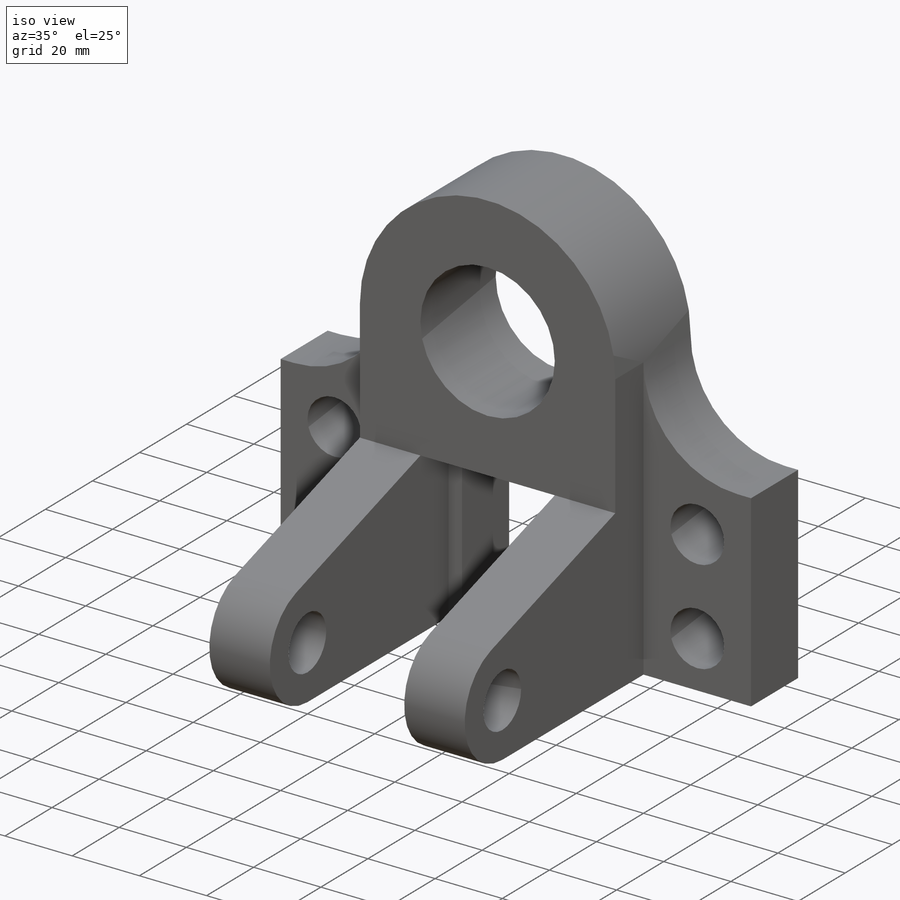
[diagram: iso view]
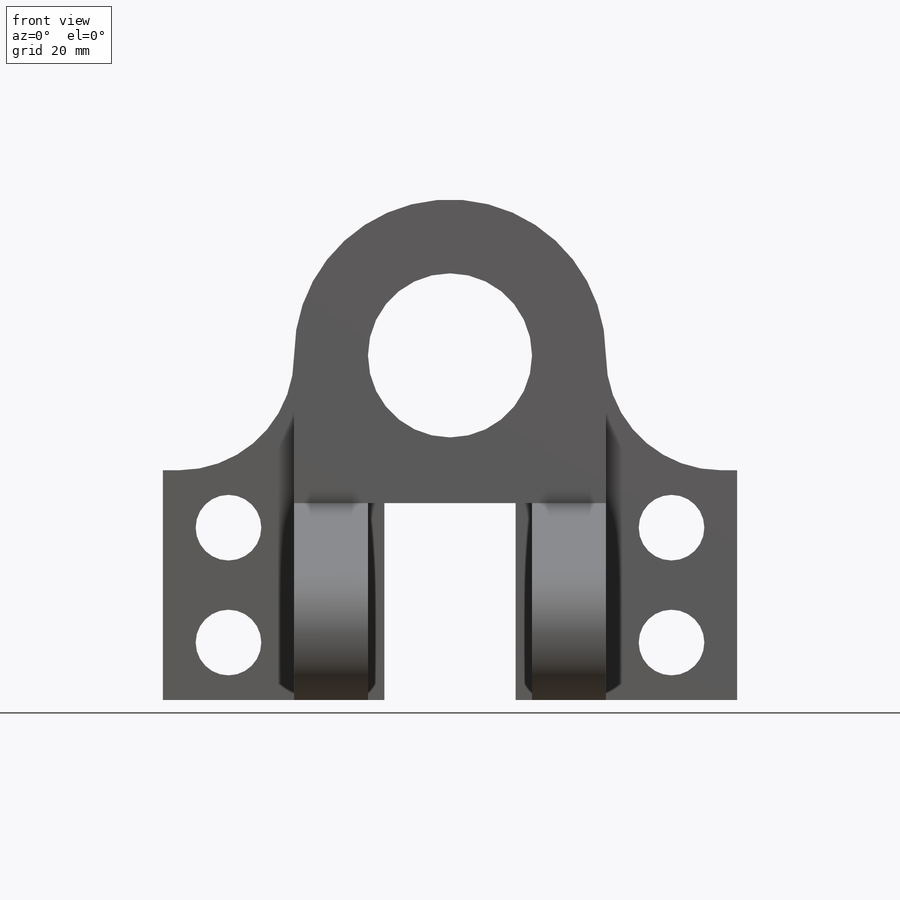
[diagram: front view]
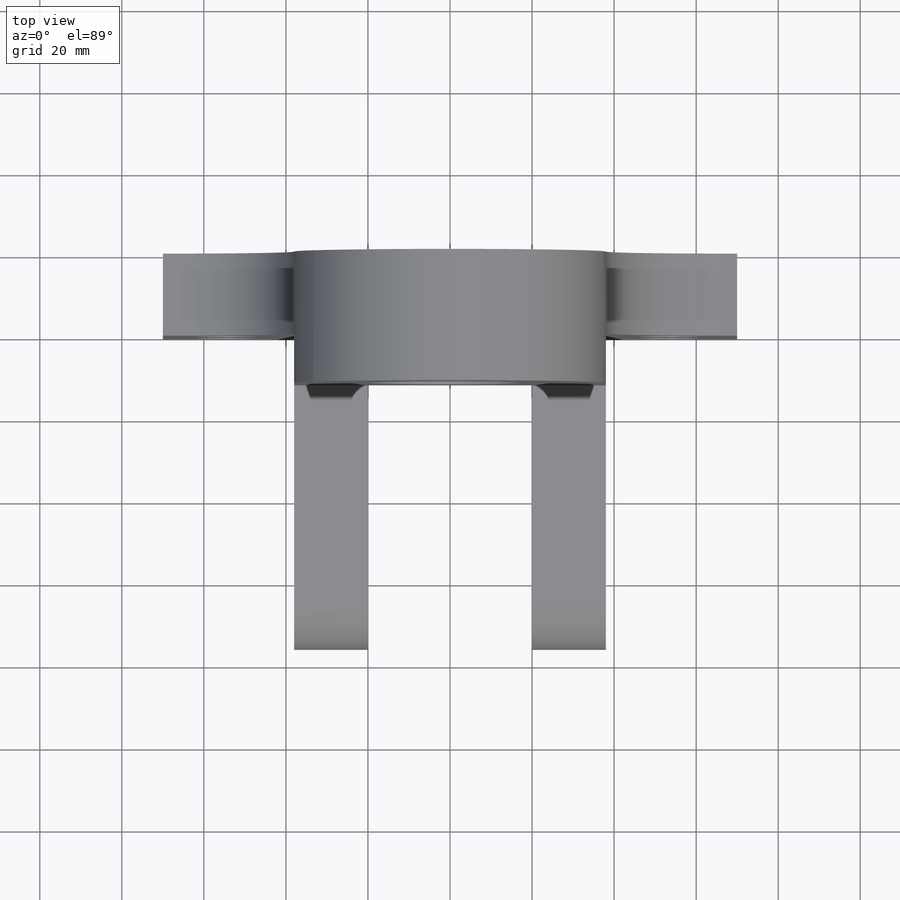
[diagram: top view]
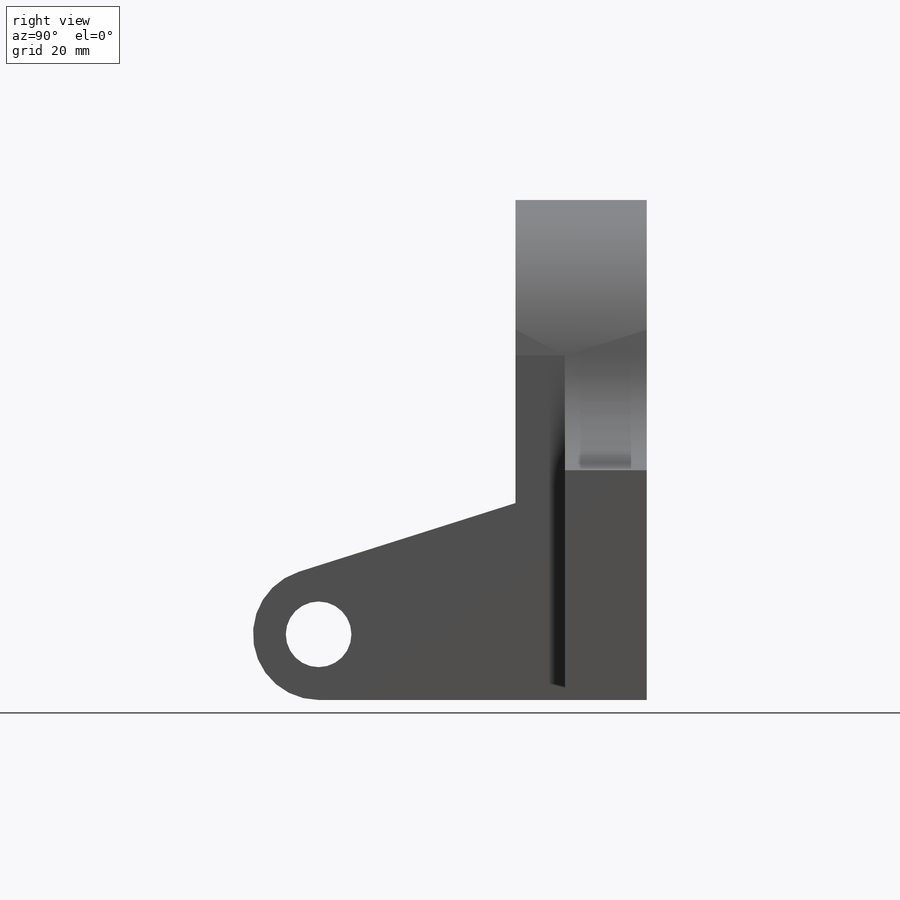
[diagram: right view]
SOLIDWORKS PART (.sldprt)
format: sldprt  version: not decoded by parser v0  size: 247,296 bytes
history: native  units: mm
features: sketch x4, extrude x4, mirror x3, fillet x2, material x1 (+12 scaffold rows collapsed)
feature tree (26):
  scaffold x12  (default folders/planes/origin — collapsed)
  material  "Material <not specified>"
  sketch  "Sketch1"  dims[c1.D1=40.0mm c1.D2=76.0mm c2.D1=~20.739461mm c2.D2=~74.621665mm c2.D3=76.0mm c2.D4=36.0mm]
  extrude  "Boss-Extrude1"  Depth=32mm
  sketch  "Sketch2"  dims[c1.D1=~24.992733mm c1.D3=~17.996083mm c1.D5=~19.226567mm c1.D6=~19.226567mm c2.D5=16.0mm c2.D1=48.0mm c2.D2=32.0mm c2.D3=28.0mm c2.D4=14.0mm c2.D6=16.0mm c2.D7=84.0mm c2.D8=84.0mm c3.D2=56.0mm c3.D7=50.0mm c3.D8=32.0mm c3.D9=~90.866244mm c3.D1=84.0mm]
  extrude  "Boss-Extrude3"  Depth=20mm
  mirror  "Mirror9"
  fillet  "Fillet15"  Radius=28mm
  fillet  "Fillet16"  Radius=28mm
  sketch  "Sketch3"  dims[c1.D1=16.0mm c1.D2=16.0mm c2.D1=~133.520196mm c2.D3=60.0mm c2.D4=~54.553559mm]
  extrude  "Boss-Extrude4"  Depth=18mm
  mirror  "Mirror11"
  sketch  "Sketch4"  dims[c1.D1=48.0mm c1.D2=~22.593358mm c2.D1=20.0mm c2.D2=48.0mm]
  extrude  "Boss-Extrude5"  Depth=4mm
  mirror  "Mirror12"
decode coverage: 10 of 13 modeling features carry decoded parameters
note: ~ marks probable driven/reference dimensions
note: suppression state not decoded; provenance and decode notes live in map.json
